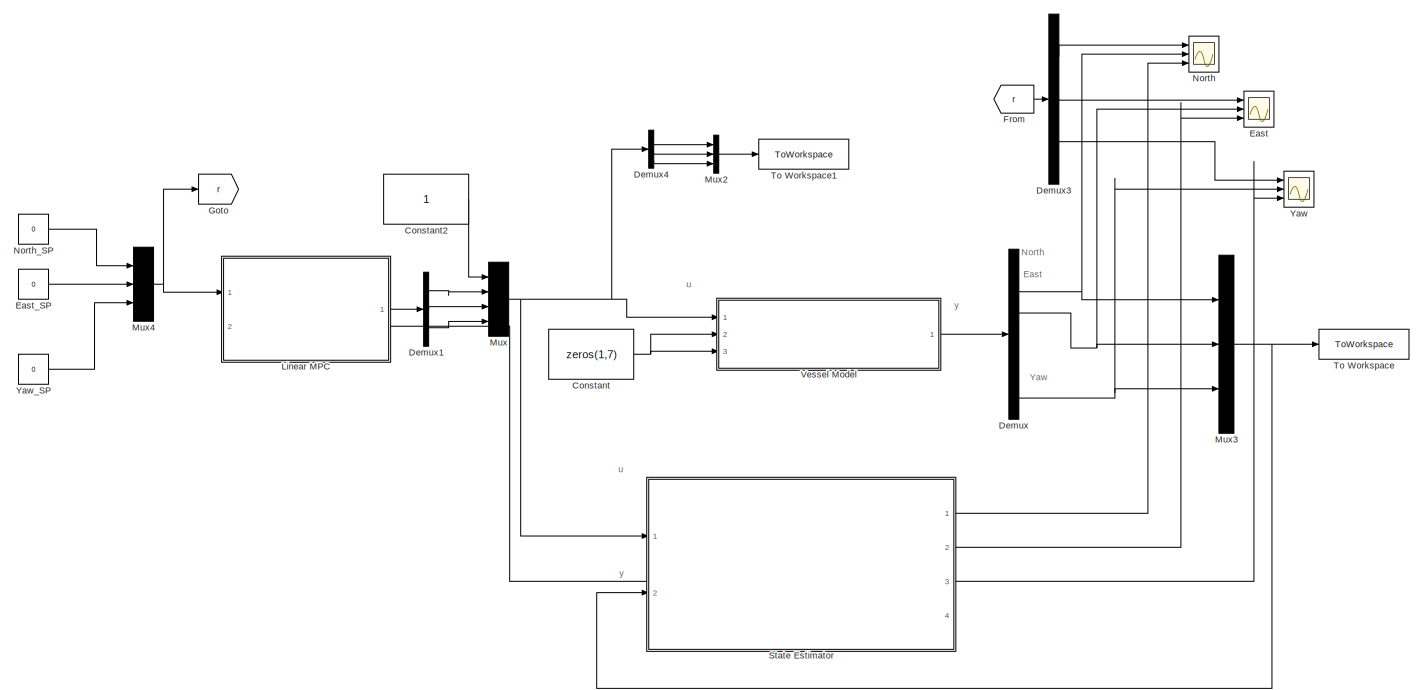
[diagram: root canvas - part 1/2, most of the canvas]
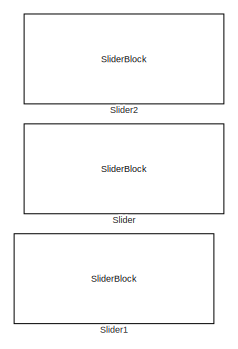
[diagram: root canvas - part 2/2, middle left region]
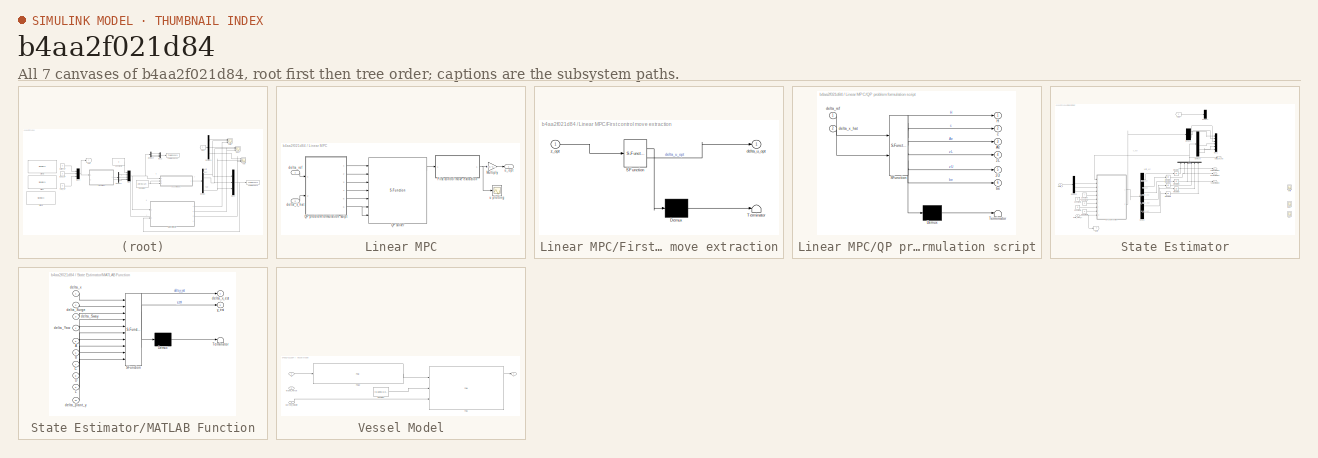
[diagram: thumbnail index - all 7 canvases of the model, root first then tree order]
MODEL slx_b4aa2f021d84
KIND model
CONFIG AbsTol = auto
CONFIG EnableMultiTasking = off
CONFIG FixedStep = 0.1
CONFIG MaxStep = auto
CONFIG MinStep = auto
CONFIG RelTol = 1e-3
CONFIG SampleTimeConstraint = Unconstrained
CONFIG SolverName = ode4
CONFIG StartTime = 0.0
CONFIG StopTime = inf
BLOCK [Constant] Constant
  Value = zeros(1,7)
BLOCK [Constant] Constant2
BLOCK [Demux] Demux
  Outputs = 7
  Ports = [1, 7]
BLOCK [Demux] Demux1
  Outputs = 3
  Ports = [1, 3]
BLOCK [Demux] Demux3
  Outputs = 3
  Ports = [1, 3]
BLOCK [Demux] Demux4
  Ports = [1, 4]
BLOCK [Scope] East
  Floating = off
  NumInputPorts = 3
  Ports = [3]
  ScopeSpecificationString = Simulink.scopes.TimeScopeBlockCfg('CurrentConfiguration', extmgr.ConfigurationSet(extmgr.Configuration('Core','General UI',true),extmgr.Configuration('Core','Source UI',true),extmgr.Configuration('Sources','WiredSimulink',true,'DataLoggingVariableName','ScopeData3'),extmgr.Configuration('Visuals','Time Domain',true,'SerializedDisplays',{struct('MinYLimReal','-11.77708','MaxYLimReal','6.52151','YLa...<+2100ch>
BLOCK [Constant] East_SP
  Value = 0
BLOCK [From] From
  GotoTag = r
BLOCK [Goto] Goto
  GotoTag = r
BLOCK [SubSystem] Linear MPC
  Ports = [2, 1]
  RequestExecContextInheritance = off
BLOCK [SubSystem] Linear MPC/First control move extraction
  ErrorFcn = Stateflow.Translate.translate
  PermitHierarchicalResolution = ExplicitOnly
  Ports = [1, 1]
  RequestExecContextInheritance = off
  SFBlockType = MATLAB Function
  TreatAsAtomicUnit = on
BLOCK [Demux] Linear MPC/First control move extraction/ Demux 
  Outputs = 1
  Ports = [1, 1]
BLOCK [S-Function] Linear MPC/First control move extraction/ SFunction 
  EnableBusSupport = on
  FunctionName = sf_sfun
  PortCounts = [1 2]
  Ports = [1, 2]
  SFcnIsStateOwnerBlock = off
  SFunctionDeploymentMode = off
  Tag = Stateflow S-Function 1
BLOCK [Terminator] Linear MPC/First control move extraction/ Terminator 
BLOCK [Outport] Linear MPC/First control move extraction/delta_u_opt
BLOCK [Inport] Linear MPC/First control move extraction/z_opt
BLOCK [Gain] Linear MPC/Multiply
  Gain = [-1;-1;1]
BLOCK [SubSystem] Linear MPC/QP problem formulation script
  ErrorFcn = Stateflow.Translate.translate
  PermitHierarchicalResolution = ExplicitOnly
  Ports = [2, 6]
  RequestExecContextInheritance = off
  SFBlockType = MATLAB Function
  TreatAsAtomicUnit = on
BLOCK [Demux] Linear MPC/QP problem formulation script/ Demux 
  Outputs = 1
  Ports = [1, 1]
BLOCK [S-Function] Linear MPC/QP problem formulation script/ SFunction 
  EnableBusSupport = on
  FunctionName = sf_sfun
  Parameters = A,B,C
  PortCounts = [2 7]
  Ports = [2, 7]
  SFcnIsStateOwnerBlock = off
  SFunctionDeploymentMode = off
  Tag = Stateflow S-Function 2
BLOCK [Terminator] Linear MPC/QP problem formulation script/ Terminator 
BLOCK [Outport] Linear MPC/QP problem formulation script/Ae
  Port = 3
BLOCK [Outport] Linear MPC/QP problem formulation script/H
BLOCK [Outport] Linear MPC/QP problem formulation script/be
  Port = 6
BLOCK [Outport] Linear MPC/QP problem formulation script/c
  Port = 2
BLOCK [Inport] Linear MPC/QP problem formulation script/delta_ref
BLOCK [Inport] Linear MPC/QP problem formulation script/delta_x_hat
  Port = 2
BLOCK [Outport] Linear MPC/QP problem formulation script/zL
  Port = 4
BLOCK [Outport] Linear MPC/QP problem formulation script/zU
  Port = 5
BLOCK [S-Function] Linear MPC/QP solver
  EnableBusSupport = off
  FunctionName = qpOASES_SQProblem
  Ports = [7, 4]
  SFcnIsStateOwnerBlock = off
  SFunctionDeploymentMode = off
BLOCK [Inport] Linear MPC/delta_ref
BLOCK [Inport] Linear MPC/delta_x_hat
  Port = 2
BLOCK [Scope] Linear MPC/u plotting
  Floating = off
  NumInputPorts = 1
  Ports = [1]
  ScopeSpecificationString = Simulink.scopes.TimeScopeBlockCfg('CurrentConfiguration', extmgr.ConfigurationSet(extmgr.Configuration('Core','General UI',true),extmgr.Configuration('Core','Source UI',true),extmgr.Configuration('Sources','WiredSimulink',true,'DataLoggingVariableName','ScopeData5'),extmgr.Configuration('Visuals','Time Domain',true,'SerializedDisplays',{struct('MinYLimReal','-1316.52846','MaxYLimReal','326.34457',...<+1792ch>
BLOCK [Outport] Linear MPC/u_opt
BLOCK [Mux] Mux
  DisplayOption = bar
  Ports = [4, 1]
BLOCK [Mux] Mux2
  DisplayOption = bar
  Inputs = 3
  Ports = [3, 1]
BLOCK [Mux] Mux3
  DisplayOption = bar
  Inputs = 3
  Ports = [3, 1]
BLOCK [Mux] Mux4
  DisplayOption = bar
  Inputs = 3
  Ports = [3, 1]
BLOCK [Scope] North
  Floating = off
  NumInputPorts = 3
  Ports = [3]
  ScopeSpecificationString = Simulink.scopes.TimeScopeBlockCfg('CurrentConfiguration', extmgr.ConfigurationSet(extmgr.Configuration('Core','General UI',true),extmgr.Configuration('Core','Source UI',true),extmgr.Configuration('Sources','WiredSimulink',true,'DataLoggingVariableName','ScopeData4'),extmgr.Configuration('Visuals','Time Domain',true,'SerializedDisplays',{struct('MinYLimReal','-1.4083','MaxYLimReal','11.74332','YLab...<+1784ch>
BLOCK [Constant] North_SP
  Value = 0
BLOCK [SliderBlock] Slider
  ScaleMax = 28
  ScaleMin = -28
BLOCK [SliderBlock] Slider1
  ScaleMax = 2
  ScaleMin = -2
BLOCK [SliderBlock] Slider2
  ScaleMax = 28
  ScaleMin = -28
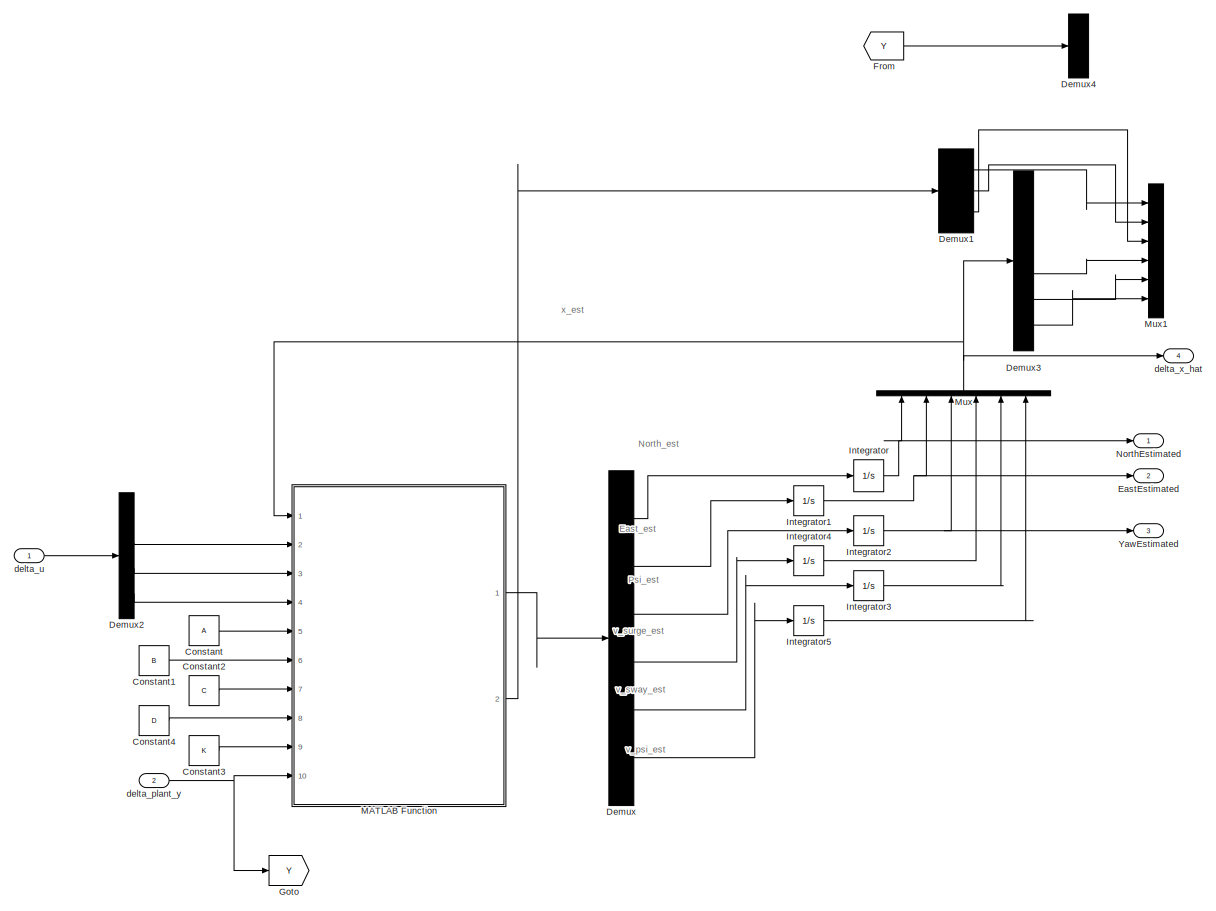
[diagram: State Estimator - part 1/2, center side, full height]
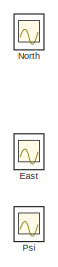
[diagram: State Estimator - part 2/2, bottom right region]
BLOCK [SubSystem] State Estimator
  PortSchema = {"entries":[{"content":{"sides":[{"content":{"connectorIds":["In1","Out4","In2"]},"type":"ConnectorPlacement.EquallySpacedRectSide","uuid":"9c8ac4e3-02eb-464a-9f84-8cc0f9418243"},{"content":{"connectorIds":["Out1","Out2","Out3"],"side":"RIGHT"},"type":"ConnectorPlacement.EquallySpacedRectSide","uuid":"66f11e56-0dca-41e5-b0a3-a654565c51d0"},{"content":{"connectorIds":[],"side":"TOP"},"type":"Connec...<+267ch>
  Ports = [2, 4]
  RequestExecContextInheritance = off
BLOCK [Constant] State Estimator/Constant
  Value = A
BLOCK [Constant] State Estimator/Constant1
  Value = B
BLOCK [Constant] State Estimator/Constant2
  Value = C
BLOCK [Constant] State Estimator/Constant3
  Value = K
BLOCK [Constant] State Estimator/Constant4
  Value = D
BLOCK [Demux] State Estimator/Demux
  Outputs = 6
  Ports = [1, 6]
BLOCK [Demux] State Estimator/Demux1
  Outputs = 3
  Ports = [1, 3]
BLOCK [Demux] State Estimator/Demux2
  Ports = [1, 4]
BLOCK [Demux] State Estimator/Demux3
  Outputs = 6
  Ports = [1, 6]
BLOCK [Demux] State Estimator/Demux4
  Outputs = 3
  Ports = [1, 3]
BLOCK [Scope] State Estimator/East
  Floating = off
  NumInputPorts = 3
  Ports = [3]
  ScopeSpecificationString = Simulink.scopes.TimeScopeBlockCfg('CurrentConfiguration', extmgr.ConfigurationSet(extmgr.Configuration('Core','General UI',true),extmgr.Configuration('Core','Source UI',true),extmgr.Configuration('Sources','WiredSimulink',true,'DataLoggingVariableName','ScopeData1'),extmgr.Configuration('Visuals','Time Domain',true,'SerializedDisplays',{struct('MinYLimReal','-1.28881','MaxYLimReal','8.99204','YLab...<+1717ch>
BLOCK [Outport] State Estimator/EastEstimated
  Port = 2
BLOCK [From] State Estimator/From
  GotoTag = Y
BLOCK [Goto] State Estimator/Goto
  GotoTag = Y
BLOCK [Integrator] State Estimator/Integrator
  LimitOutput = on
  LowerSaturationLimit = -100
  Ports = [1, 1]
  UpperSaturationLimit = 100
BLOCK [Integrator] State Estimator/Integrator1
  LimitOutput = on
  LowerSaturationLimit = -100
  Ports = [1, 1]
  UpperSaturationLimit = 100
BLOCK [Integrator] State Estimator/Integrator2
  InitialCondition = -0.0005
  LimitOutput = on
  LowerSaturationLimit = -0.02
  Ports = [1, 1]
  UpperSaturationLimit = 0.02
BLOCK [Integrator] State Estimator/Integrator3
  InitialCondition = 0.0067
  LimitOutput = on
  LowerSaturationLimit = -4
  Ports = [1, 1]
  UpperSaturationLimit = 4
BLOCK [Integrator] State Estimator/Integrator4
  InitialCondition = 0.1385
  LimitOutput = on
  LowerSaturationLimit = -4
  Ports = [1, 1]
  UpperSaturationLimit = 4
BLOCK [Integrator] State Estimator/Integrator5
  InitialCondition = -0.0017
  LimitOutput = on
  LowerSaturationLimit = -0.2
  Ports = [1, 1]
  UpperSaturationLimit = 0.2
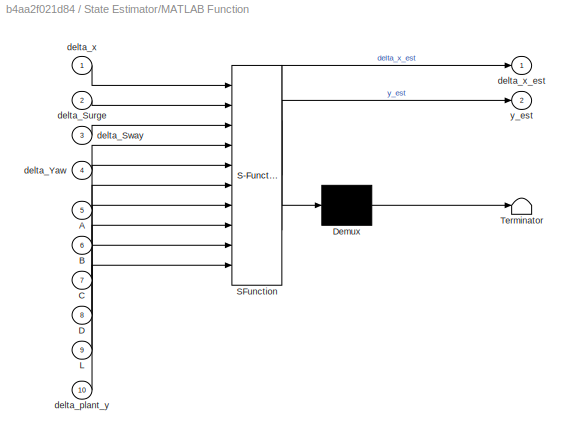
BLOCK [SubSystem] State Estimator/MATLAB Function
  ErrorFcn = Stateflow.Translate.translate
  PermitHierarchicalResolution = ExplicitOnly
  Ports = [10, 2]
  RequestExecContextInheritance = off
  SFBlockType = MATLAB Function
  TreatAsAtomicUnit = on
BLOCK [Demux] State Estimator/MATLAB Function/ Demux 
  Outputs = 1
  Ports = [1, 1]
BLOCK [S-Function] State Estimator/MATLAB Function/ SFunction 
  EnableBusSupport = on
  FunctionName = sf_sfun
  PortCounts = [10 3]
  Ports = [10, 3]
  SFcnIsStateOwnerBlock = off
  SFunctionDeploymentMode = off
  Tag = Stateflow S-Function 5
BLOCK [Terminator] State Estimator/MATLAB Function/ Terminator 
BLOCK [Inport] State Estimator/MATLAB Function/A
  Port = 5
BLOCK [Inport] State Estimator/MATLAB Function/B
  Port = 6
BLOCK [Inport] State Estimator/MATLAB Function/C
  Port = 7
BLOCK [Inport] State Estimator/MATLAB Function/D
  Port = 8
BLOCK [Inport] State Estimator/MATLAB Function/L
  Port = 9
BLOCK [Inport] State Estimator/MATLAB Function/delta_Surge
  Port = 2
BLOCK [Inport] State Estimator/MATLAB Function/delta_Sway
  Port = 3
BLOCK [Inport] State Estimator/MATLAB Function/delta_Yaw
  Port = 4
BLOCK [Inport] State Estimator/MATLAB Function/delta_plant_y
  Port = 10
BLOCK [Inport] State Estimator/MATLAB Function/delta_x
BLOCK [Outport] State Estimator/MATLAB Function/delta_x_est
BLOCK [Outport] State Estimator/MATLAB Function/y_est
  Port = 2
BLOCK [Mux] State Estimator/Mux
  DisplayOption = bar
  Inputs = 6
  NameLocation = right
  Ports = [6, 1]
BLOCK [Mux] State Estimator/Mux1
  DisplayOption = bar
  Inputs = 6
  Ports = [6, 1]
BLOCK [Scope] State Estimator/North
  Floating = off
  NumInputPorts = 3
  Ports = [3]
  ScopeSpecificationString = Simulink.scopes.TimeScopeBlockCfg('CurrentConfiguration', extmgr.ConfigurationSet(extmgr.Configuration('Core','General UI',true),extmgr.Configuration('Core','Source UI',true),extmgr.Configuration('Sources','WiredSimulink',true,'DataLoggingVariableName','ScopeData2'),extmgr.Configuration('Visuals','Time Domain',true,'SerializedDisplays',{struct('MinYLimReal','-0.20636','MaxYLimReal','0.12607','YLab...<+1809ch>
BLOCK [Outport] State Estimator/NorthEstimated
BLOCK [Scope] State Estimator/Psi
  Floating = off
  NumInputPorts = 2
  Ports = [2]
  ScopeSpecificationString = Simulink.scopes.TimeScopeBlockCfg('CurrentConfiguration', extmgr.ConfigurationSet(extmgr.Configuration('Core','General UI',true),extmgr.Configuration('Core','Source UI',true),extmgr.Configuration('Sources','WiredSimulink',true),extmgr.Configuration('Visuals','Time Domain',true,'SerializedDisplays',{struct('MinYLimReal','-0.46765','MaxYLimReal','1.30328','YLabelReal','Yaw [m]','MinYLimMag','0.00000...<+1615ch>
BLOCK [Outport] State Estimator/YawEstimated
  Port = 3
BLOCK [Inport] State Estimator/delta_plant_y
  Port = 2
BLOCK [Inport] State Estimator/delta_u
BLOCK [Outport] State Estimator/delta_x_hat
  Port = 4
BLOCK [ToWorkspace] To Workspace
  FixptAsFi = on
  MaxDataPoints = inf
  Ports = [1]
  SampleTime = 0.1
  VariableName = Y
BLOCK [ToWorkspace] To Workspace1
  FixptAsFi = on
  MaxDataPoints = inf
  Ports = [1]
  SampleTime = 0.1
  VariableName = U
BLOCK [SubSystem] Vessel Model
  Ports = [3, 1]
  RequestExecContextInheritance = off
BLOCK [Constant] Vessel Model/Constant
  Value = [0,5000,0,0,0,0,0]
BLOCK [Inport] Vessel Model/Current_Velocity
  Port = 3
BLOCK [FMU] Vessel Model/FMU
  Axc = 106.0
  Ayc = 419.0
  Bv_0_ = 44000.0
  Bv_10_ = 0.0
  Bv_11_ = 0.0
  Bv_12_ = 0.0
  Bv_13_ = 0.0
  Bv_14_ = 0.0
  Bv_15_ = 0.0
  Bv_16_ = 0.0
  Bv_17_ = 0.0
  Bv_18_ = 0.0
  Bv_19_ = 0.0
  Bv_1_ = 0.0
  Bv_20_ = 0.0
  Bv_21_ = 686000.0
  Bv_22_ = 0.0
  Bv_23_ = 0.0
  Bv_24_ = 0.0
  Bv_25_ = 0.0
  Bv_26_ = 0.0
  Bv_27_ = 0.0
  Bv_28_ = 0.0
  Bv_29_ = 0.0
  Bv_2_ = 0.0
  Bv_30_ = 0.0
  Bv_31_ = 0.0
  Bv_32_ = 0.0
  Bv_33_ = 0.0
  Bv_34_ = 0.0
  Bv_35_ = 1.0259E+7
  Bv_3_ = 0.0
  Bv_4_ = 0.0
  Bv_5_ = 0.0
  Bv_6_ = 0.0
  Bv_7_ = 177000.0
  Bv_8_ = 0.0
  Bv_9_ = 0.0
  Cx = 1.0
  Cy = 0.7812
  Dp_0_ = 5300.0
  Dp_10_ = 0.0
  Dp_11_ = 294000.0
  Dp_12_ = 0.0
  Dp_13_ = 0.0
  Dp_14_ = 1900.0
  Dp_15_ = 0.0
  Dp_16_ = -68400.0
  Dp_17_ = 0.0
  Dp_18_ = 0.0
  Dp_19_ = -20300.0
  Dp_1_ = 0.0
  Dp_20_ = 0.0
  Dp_21_ = 7600.0
  Dp_22_ = 0.0
  Dp_23_ = -201300.0
  Dp_24_ = 0.0
  Dp_25_ = 0.0
  Dp_26_ = -68400.0
  Dp_27_ = 0.0
  Dp_28_ = 819700.0
  Dp_29_ = 0.0
  Dp_2_ = 0.0
  Dp_30_ = 0.0
  Dp_31_ = 294000.0
  Dp_32_ = 0.0
  Dp_33_ = -201300.0
  Dp_34_ = 0.0
  Dp_35_ = 1.8944E+6
  Dp_3_ = 0.0
  Dp_4_ = 0.0
  Dp_5_ = 0.0
  Dp_6_ = 0.0
  Dp_7_ = 21100.0
  Dp_8_ = 0.0
  Dp_9_ = -20300.0
  FMUMode = CoSimulation
  FMUName = VesselModel.fmu
  G_0_ = 0.0
  G_10_ = 0.0
  G_11_ = 0.0
  G_12_ = 0.0
  G_13_ = 0.0
  G_14_ = 2.44E+6
  G_15_ = 0.0
  G_16_ = 1.78E+6
  G_17_ = 0.0
  G_18_ = 0.0
  G_19_ = 0.0
  G_1_ = 0.0
  G_20_ = 0.0
  G_21_ = 5.11E+6
  G_22_ = 0.0
  G_23_ = 0.0
  G_24_ = 0.0
  G_25_ = 0.0
  G_26_ = 1.78E+6
  G_27_ = 0.0
  G_28_ = 1.2737E+8
  G_29_ = 0.0
  G_2_ = 0.0
  G_30_ = 0.0
  G_31_ = 0.0
  G_32_ = 0.0
  G_33_ = 0.0
  G_34_ = 0.0
  G_35_ = 0.0
  G_3_ = 0.0
  G_4_ = 0.0
  G_5_ = 0.0
  G_6_ = 0.0
  G_7_ = 0.0
  G_8_ = 0.0
  G_9_ = 0.0
  Lpp = 28.9
  MaskPromptString = Axc|Ayc|Bv[0]|Bv[1]|Bv[2]|Bv[3]|Bv[4]|Bv[5]|Bv[6]|Bv[7]|Bv[8]|Bv[9]|Bv[10]|Bv[11]|Bv[12]|Bv[13]|Bv[14]|Bv[15]|Bv[16]|Bv[17]|Bv[18]|Bv[19]|Bv[20]|Bv[21]|Bv[22]|Bv[23]|Bv[24]|Bv[25]|Bv[26]|Bv[27]|Bv[28]|Bv[29]|Bv[30]|Bv[31]|Bv[32]|Bv[33]|Bv[34]|Bv[35]|Cx|Cy|Dp[0]|Dp[1]|Dp[2]|Dp[3]|Dp[4]|Dp[5]|Dp[6]|Dp[7]|Dp[8]|Dp[9]|Dp[10]|Dp[11]|Dp[12]|Dp[13]|Dp[14]|Dp[15]|Dp[16]|Dp[17]|Dp[18]|Dp[19]|Dp[20]|Dp[21]|...<+1501ch>
  MaskType = VesselModel [Co-Simulation, v2.0]
  Minv_0_ = 1.268E-6
  Minv_10_ = 0.0
  Minv_11_ = 1.0E-9
  Minv_12_ = 0.0
  Minv_13_ = 0.0
  Minv_14_ = 5.9200000000000011E-7
  Minv_15_ = 0.0
  Minv_16_ = -1.3E-8
  Minv_17_ = 0.0
  Minv_18_ = 0.0
  Minv_19_ = 1.2E-8
  Minv_1_ = 0.0
  Minv_20_ = 0.0
  Minv_21_ = 1.0000000000000001E-7
  Minv_22_ = 0.0
  Minv_23_ = -1.0E-9
  Minv_24_ = 0.0
  Minv_25_ = 0.0
  Minv_26_ = -1.3E-8
  Minv_27_ = 0.0
  Minv_28_ = 1.2E-8
  Minv_29_ = 0.0
  Minv_2_ = 0.0
  Minv_30_ = 0.0
  Minv_31_ = 1.0E-9
  Minv_32_ = 0.0
  Minv_33_ = -1.0E-9
  Minv_34_ = 0.0
  Minv_35_ = 2.0E-8
  Minv_3_ = 0.0
  Minv_4_ = 0.0
  Minv_5_ = 0.0
  Minv_6_ = 0.0
  Minv_7_ = 1.083E-6
  Minv_8_ = 0.0
  Minv_9_ = 1.2E-8
  N = 20.0
  Ports = [3, 3]
  X_DOF_DP_model_Integrator1__InitialCondition_0_ = 0.0
  X_DOF_DP_model_Integrator1__InitialCondition_1_ = 0.0
  X_DOF_DP_model_Integrator1__InitialCondition_2_ = 0.0
  X_DOF_DP_model_Integrator1__InitialCondition_3_ = 0.0
  X_DOF_DP_model_Integrator1__InitialCondition_4_ = 0.0
  X_DOF_DP_model_Integrator1__InitialCondition_5_ = 0.0
  X_DOF_DP_model_Integrator2_InitialCondition_0_ = 0.0
  X_DOF_DP_model_Integrator2_InitialCondition_1_ = 0.0
  X_DOF_DP_model_Integrator2_InitialCondition_2_ = 0.0
  X_DOF_DP_model_Integrator2_InitialCondition_3_ = 0.0
  X_DOF_DP_model_Integrator2_InitialCondition_4_ = 0.0
  X_DOF_DP_model_Integrator2_InitialCondition_5_ = 0.0
  X_DOF_DP_model_Rotate_yaw_T_Constant_Value = 0.0
  X_DOF_DP_model_Rotate_yaw_T_psi_Value = 0.0
  X_DOF_DP_model_X_DOF_transformation_Euler_angles_to_att = 0.0
  X_DOF_DP_model_X_DOF_transformation_Euler_angles_to_att_2 = 1.0
  X_DOF_DP_model_zero_Value = 0.0
  rho = 1025.0
BLOCK [FMU] Vessel Model/FMU2
  FMUMode = CoSimulation
  FMUName = ThrusterDynamics.fmu
  Heave_Thrust = struct('Value',0.0)
  MaskPromptString = Heave_Thrust|Merge1|Pitch_Thrust|Roll_Thrust|Thruster_Dynamics|enableDynamics|enableSaturation|maxThrust
  MaskType = ThrusterDynamics [Co-Simulation, v2.0]
  Merge1 = struct('InitialOutput',0.0)
  Pitch_Thrust = struct('Value',0.0)
  Ports = [1, 1]
  Roll_Thrust = struct('Value',0.0)
  Thruster_Dynamics = struct('Surge_Thrust_Dynamics',struct('A',-0.2,'C',0.2),'Sway_Thrust_Dynamics',struct('A',-0.2,'C',0.2),'Yaw_Thrust_Dynamics',struct('A',-0.2,'C',0.2))
  enableDynamics = on
  enableSaturation = on
  maxThrust = [1.0E+10,1.0E+10,1.0E+11]
BLOCK [Inport] Vessel Model/Wave_Force
  Port = 2
BLOCK [Inport] Vessel Model/u
BLOCK [Outport] Vessel Model/y
BLOCK [Scope] Yaw
  Floating = off
  NumInputPorts = 3
  Ports = [3]
  ScopeSpecificationString = Simulink.scopes.TimeScopeBlockCfg('CurrentConfiguration', extmgr.ConfigurationSet(extmgr.Configuration('Core','General UI',true),extmgr.Configuration('Core','Source UI',true),extmgr.Configuration('Sources','WiredSimulink',true,'DataLoggingVariableName','ScopeData6'),extmgr.Configuration('Visuals','Time Domain',true,'SerializedDisplays',{struct('MinYLimReal','-2.9509','MaxYLimReal','1.25097','YLabe...<+1898ch>
BLOCK [Constant] Yaw_SP
  Value = 0
ANNOTATION (root): East
ANNOTATION (root): North
ANNOTATION (root): Yaw
ANNOTATION (root): u
ANNOTATION (root): y
ANNOTATION State Estimator: East_est
ANNOTATION State Estimator: North_est
ANNOTATION State Estimator: Psi_est
ANNOTATION State Estimator: v_psi_est
ANNOTATION State Estimator: v_surge_est
ANNOTATION State Estimator: v_sway_est
ANNOTATION State Estimator: x_est
LINE Constant2:1 -> Mux:1
NET Constant:1 -> Vessel Model:2, Vessel Model:3
LINE Demux1:1 -> Mux:2
LINE Demux1:2 -> Mux:3
LINE Demux1:3 -> Mux:4
LINE Demux3:1 -> North:1
LINE Demux3:2 -> East:1
LINE Demux3:3 -> Yaw:1
LINE Demux4:2 -> Mux2:1
LINE Demux4:3 -> Mux2:2
LINE Demux4:4 -> Mux2:3
NET Demux:2 -> Mux3:1, North:2
NET Demux:3 -> East:2, Mux3:2
NET Demux:7 -> Mux3:3, Yaw:2
LINE East_SP:1 -> Mux4:2
LINE From:1 -> Demux3:1
NET Linear MPC/First control move extraction:1 -> Linear MPC/Multiply:1, Linear MPC/u plotting:1
LINE Linear MPC/Multiply:1 -> Linear MPC/u_opt:1
LINE Linear MPC/QP problem formulation script:1 -> Linear MPC/QP solver:1
LINE Linear MPC/QP problem formulation script:2 -> Linear MPC/QP solver:2
LINE Linear MPC/QP problem formulation script:3 -> Linear MPC/QP solver:3
LINE Linear MPC/QP problem formulation script:4 -> Linear MPC/QP solver:4
LINE Linear MPC/QP problem formulation script:5 -> Linear MPC/QP solver:5
NET Linear MPC/QP problem formulation script:6 -> Linear MPC/QP solver:6, Linear MPC/QP solver:7
LINE Linear MPC/QP solver:1 -> Linear MPC/First control move extraction:1
LINE Linear MPC/delta_ref:1 -> Linear MPC/QP problem formulation script:1
LINE Linear MPC/delta_x_hat:1 -> Linear MPC/QP problem formulation script:2
LINE Linear MPC:1 -> Demux1:1
LINE Mux2:1 -> To Workspace1:1
NET Mux3:1 -> State Estimator:2, To Workspace:1
NET Mux4:1 -> Goto:1, Linear MPC:1
NET Mux:1 -> Demux4:1, State Estimator:1, Vessel Model:1
LINE North_SP:1 -> Mux4:1
LINE State Estimator/Constant1:1 -> State Estimator/MATLAB Function:6
LINE State Estimator/Constant2:1 -> State Estimator/MATLAB Function:7
LINE State Estimator/Constant3:1 -> State Estimator/MATLAB Function:9
LINE State Estimator/Constant4:1 -> State Estimator/MATLAB Function:8
LINE State Estimator/Constant:1 -> State Estimator/MATLAB Function:5
LINE State Estimator/Demux1:1 -> State Estimator/Mux1:1
LINE State Estimator/Demux1:2 -> State Estimator/Mux1:2
LINE State Estimator/Demux1:3 -> State Estimator/Mux1:3
LINE State Estimator/Demux2:2 -> State Estimator/MATLAB Function:2
LINE State Estimator/Demux2:3 -> State Estimator/MATLAB Function:3
LINE State Estimator/Demux2:4 -> State Estimator/MATLAB Function:4
LINE State Estimator/Demux3:4 -> State Estimator/Mux1:4
LINE State Estimator/Demux3:5 -> State Estimator/Mux1:5
LINE State Estimator/Demux3:6 -> State Estimator/Mux1:6
LINE State Estimator/Demux:1 -> State Estimator/Integrator:1
LINE State Estimator/Demux:2 -> State Estimator/Integrator1:1
LINE State Estimator/Demux:3 -> State Estimator/Integrator2:1
LINE State Estimator/Demux:4 -> State Estimator/Integrator4:1
LINE State Estimator/Demux:5 -> State Estimator/Integrator3:1
LINE State Estimator/Demux:6 -> State Estimator/Integrator5:1
LINE State Estimator/From:1 -> State Estimator/Demux4:1
NET State Estimator/Integrator1:1 -> State Estimator/EastEstimated:1, State Estimator/Mux:2
NET State Estimator/Integrator2:1 -> State Estimator/Mux:3, State Estimator/YawEstimated:1
LINE State Estimator/Integrator3:1 -> State Estimator/Mux:5
LINE State Estimator/Integrator4:1 -> State Estimator/Mux:4
LINE State Estimator/Integrator5:1 -> State Estimator/Mux:6
NET State Estimator/Integrator:1 -> State Estimator/Mux:1, State Estimator/NorthEstimated:1
LINE State Estimator/MATLAB Function:1 -> State Estimator/Demux:1
LINE State Estimator/MATLAB Function:2 -> State Estimator/Demux1:1
NET State Estimator/Mux:1 -> State Estimator/Demux3:1, State Estimator/MATLAB Function:1, State Estimator/delta_x_hat:1
NET State Estimator/delta_plant_y:1 -> State Estimator/Goto:1, State Estimator/MATLAB Function:10
LINE State Estimator/delta_u:1 -> State Estimator/Demux2:1
LINE State Estimator:1 -> North:3
LINE State Estimator:2 -> East:3
LINE State Estimator:3 -> Yaw:3
LINE State Estimator:4 -> Linear MPC:2
LINE Vessel Model/Constant:1 -> Vessel Model/FMU:2
LINE Vessel Model/Current_Velocity:1 -> Vessel Model/FMU:3
LINE Vessel Model/FMU2:1 -> Vessel Model/FMU:1
LINE Vessel Model/FMU:1 -> Vessel Model/y:1
LINE Vessel Model/u:1 -> Vessel Model/FMU2:1
LINE Vessel Model:1 -> Demux:1
LINE Yaw_SP:1 -> Mux4:3
note: NET lines group one-source signal fan-out (src -> all destinations, sorted); 1:1 wires keep LINE
CHART Linear MPC/First control move extraction states=1 transitions=1
  STATE_LABEL 'eML_blk_kernel()'
  STATE_LABEL 'SCRIPT:\nfunction delta_u_opt = fcn(z_opt)\n%no need for the control moves for the whole prediction horizon, selecting\n%only the first.\ndelta_u_opt = z_opt(1:3);\n'
CHART Linear MPC/QP problem formulation script states=1 transitions=1
  STATE_LABEL 'eML_blk_kernel()'
  STATE_LABEL 'SCRIPT:\nfunction [H, c, Ae, zL, zU, be] = QP_formulation(delta_ref, delta_x_hat,A, B, C)\n\n%Discrete time model is imported from \n%The system identification part. \n\nN = 20;                         %Prediction horizon length\nQ = diag([3e4 5e4 1e4 ]);       %Weighting matrix for the error\n%%Q = diag([1 1 1 ]);       %Weighting matrix for the error\n%P = 1e-3;                      % Weighting matrix fo...<+1530ch>'
CHART State Estimator/MATLAB Function states=1 transitions=1
  STATE_LABEL 'eML_blk_kernel()'
  STATE_LABEL 'SCRIPT:\nfunction [delta_x_est,y_est]= state_estimator(delta_x, delta_Surge, delta_Sway, delta_Yaw,A, B,C, D,L,delta_plant_y)\n\ny_est = C*delta_x+D*[delta_Surge;delta_Sway;delta_Yaw];\ndelta_x_est = A*delta_x +B*[delta_Surge;delta_Sway;delta_Yaw] + L*(delta_plant_y-y_est);\n'
CHART  states=0 transitions=0
CHART  states=0 transitions=0
CHART  states=0 transitions=0
